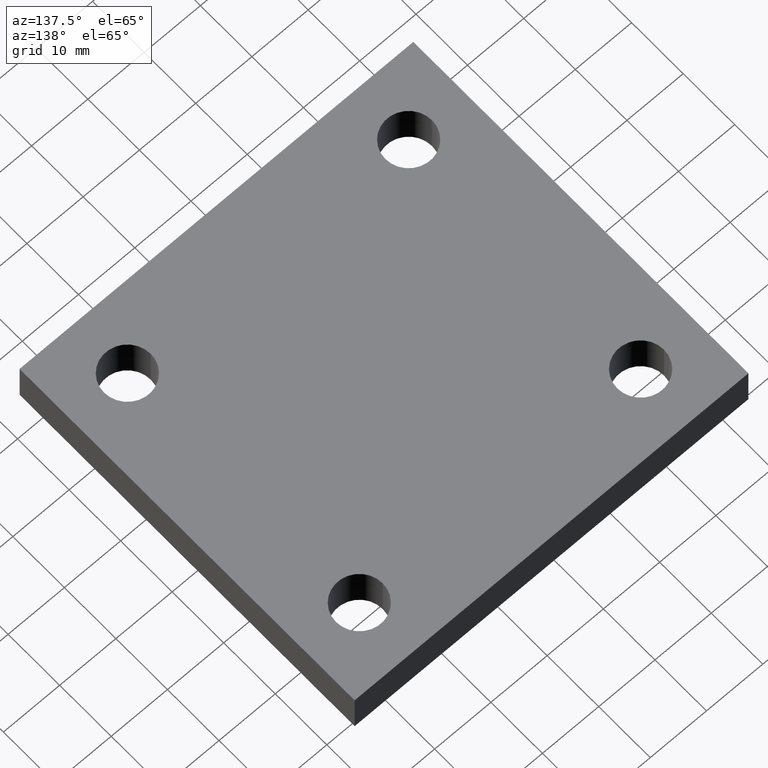
[diagram: clean part render]
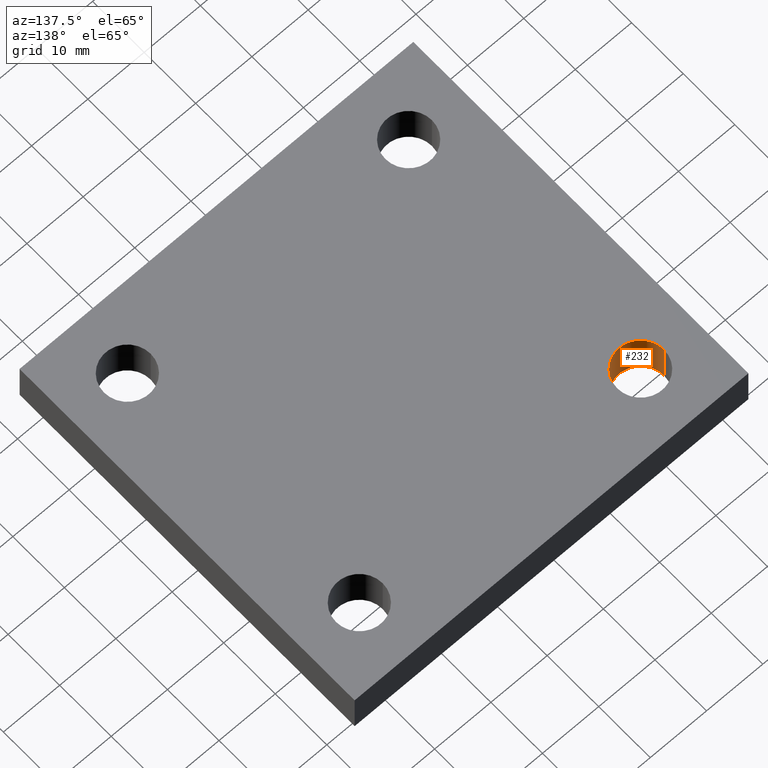
[diagram: same view with one face highlighted and labeled with its STEP entity id]
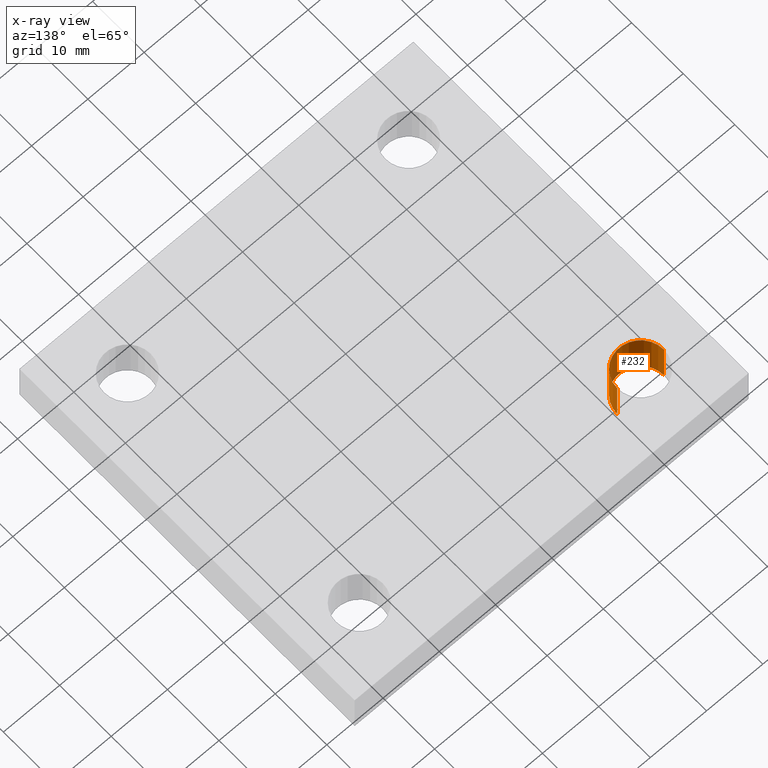
[diagram: x-ray of the same camera — body ghosted, the highlighted face saturated]
A machine part, auxiliary view. The second image highlights one B-rep face of the part: STEP entity #232.
The next image is the same camera in x-ray: the body ghosted, the highlighted face saturated — about 0% of this face is hidden behind the body in this view.
In plain terms, the highlighted face is a freeform B-spline surface patch.
Its self-contained STEP definition (entity closure, byte-faithful):
#170=CARTESIAN_POINT('',(21.789752180801720,0.972626184769104,8.0));
#171=CARTESIAN_POINT('',(21.789752180801720,0.972626184769104,0.0));
#172=CARTESIAN_POINT('',(21.789752180801720,-3.177373815230894,8.0));
#173=CARTESIAN_POINT('',(21.789752180801720,-3.177373815230894,0.0));
#174=CARTESIAN_POINT('',(25.939752180801719,-3.177373815230895,8.0));
#175=CARTESIAN_POINT('',(25.939752180801719,-3.177373815230895,0.0));
#176=CARTESIAN_POINT('',(30.089752180801721,-3.177373815230893,8.0));
#177=CARTESIAN_POINT('',(30.089752180801721,-3.177373815230893,0.0));
#178=CARTESIAN_POINT('',(30.089752180801717,0.972626184769105,8.0));
#179=CARTESIAN_POINT('',(30.089752180801717,0.972626184769105,0.0));
#180=CARTESIAN_POINT('',(30.089752180801721,5.122626184769103,8.0));
#181=CARTESIAN_POINT('',(30.089752180801721,5.122626184769103,0.0));
#182=CARTESIAN_POINT('',(25.939752180801719,5.122626184769103,8.0));
#183=CARTESIAN_POINT('',(25.939752180801719,5.122626184769103,0.0));
#184=CARTESIAN_POINT('',(21.789752180801720,5.122626184769101,8.0));
#185=CARTESIAN_POINT('',(21.789752180801720,5.122626184769101,0.0));
#186=CARTESIAN_POINT('',(21.789752180801720,0.972626184769104,8.0));
#187=CARTESIAN_POINT('',(21.789752180801720,0.972626184769104,0.0));
#195=(BOUNDED_SURFACE()B_SPLINE_SURFACE(1,2,((#170,#172,#174,#176,#178,#180,#182,#184,#186),(#171,#173,#175,#177,#179,#181,#183,#185,#187)),.UNSPECIFIED.,.F.,.T.,.U.)B_SPLINE_SURFACE_WITH_KNOTS((2,2),(3,2,2,2,3),(-0.963855421686747,0.963855421686747),(0.0,6.518804756198821,13.037609512397642,19.556414268596463,26.075219024795285),.UNSPECIFIED.)GEOMETRIC_REPRESENTATION_ITEM()RATIONAL_B_SPLINE_SURFACE(((1.0,0.707106781186548,1.0,0.707106781186548,1.0,0.707106781186548,1.0,0.707106781186548,1.0),(1.0,0.707106781186548,1.0,0.707106781186548,1.0,0.707106781186548,1.0,0.707106781186548,1.0)))REPRESENTATION_ITEM('')SURFACE());
#196=CARTESIAN_POINT('',(30.089752180801721,0.972626184769104,0.0));
#197=VERTEX_POINT('',#196);
#198=CARTESIAN_POINT('',(30.089752180801721,0.972626184769104,8.0));
#199=VERTEX_POINT('',#198);
#200=CARTESIAN_POINT('',(30.089752180801721,0.972626184769104,0.0));
#201=DIRECTION('',(0.0,0.0,1.0));
#202=VECTOR('',#201,8.0);
#203=LINE('',#200,#202);
#204=EDGE_CURVE('',#197,#199,#203,.T.);
#205=ORIENTED_EDGE('',*,*,#204,.F.);
#206=CARTESIAN_POINT('',(21.789752180801720,0.972626184769105,0.0));
#207=VERTEX_POINT('',#206);
#208=CARTESIAN_POINT('',(25.939752180801719,0.972626184769104,0.0));
#209=DIRECTION('',(0.0,0.0,1.0));
#210=DIRECTION('',(1.0,0.0,0.0));
#211=AXIS2_PLACEMENT_3D('',#208,#209,#210);
#212=CIRCLE('',#211,4.150000000000000);
#213=EDGE_CURVE('',#207,#197,#212,.T.);
#214=ORIENTED_EDGE('',*,*,#213,.F.);
#215=CARTESIAN_POINT('',(21.789752180801720,0.972626184769105,8.0));
#216=VERTEX_POINT('',#215);
#217=CARTESIAN_POINT('',(21.789752180801720,0.972626184769105,8.0));
#218=DIRECTION('',(0.0,0.0,-1.0));
#219=VECTOR('',#218,8.0);
#220=LINE('',#217,#219);
#221=EDGE_CURVE('',#216,#207,#220,.T.);
#222=ORIENTED_EDGE('',*,*,#221,.F.);
#223=CARTESIAN_POINT('',(25.939752180801719,0.972626184769104,8.0));
#224=DIRECTION('',(0.0,0.0,-1.0));
#225=DIRECTION('',(1.0,0.0,0.0));
#226=AXIS2_PLACEMENT_3D('',#223,#224,#225);
#227=CIRCLE('',#226,4.150000000000000);
#228=EDGE_CURVE('',#199,#216,#227,.T.);
#229=ORIENTED_EDGE('',*,*,#228,.F.);
#230=EDGE_LOOP('',(#205,#214,#222,#229));
#231=FACE_OUTER_BOUND('',#230,.T.);
#232=ADVANCED_FACE('',(#231),#195,.F.);